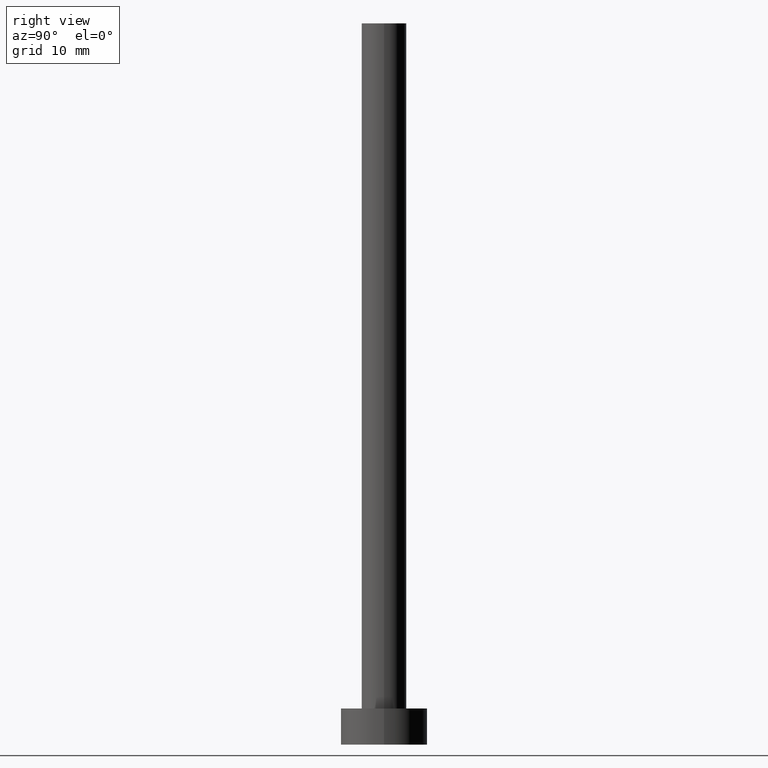
[diagram: clean part render]
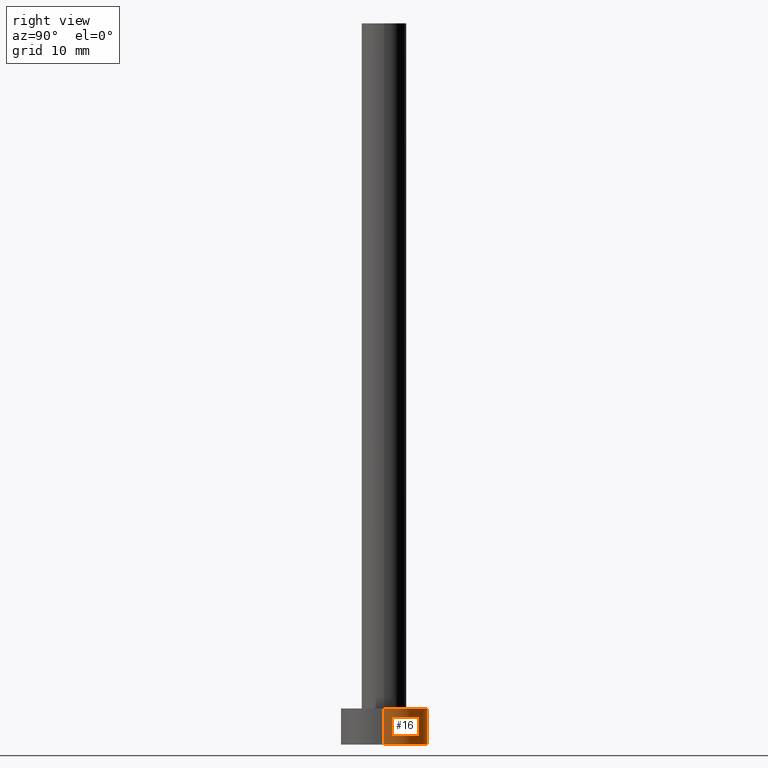
[diagram: same view with one face highlighted and labeled with its STEP entity id]
A machine part, right view. The second image highlights one B-rep face of the part: STEP entity #16.
In plain terms, the highlighted cylindrical surface (partial cylindrical patch) has radius 6 mm, axis along (-0, -0, -1).
Its self-contained STEP definition (entity closure, byte-faithful):
#7 = ORIENTED_EDGE ( 'NONE', *, *, #133, .F. ) ;
#10 = EDGE_CURVE ( 'NONE', #82, #40, #162, .T. ) ;
#16 = ADVANCED_FACE ( 'NONE', ( #68 ), #219, .T. ) ;
#17 = DIRECTION ( 'NONE',  ( -0.000000000000000000, -0.000000000000000000, -1.000000000000000000 ) ) ;
#18 = EDGE_CURVE ( 'NONE', #40, #206, #37, .T. ) ;
#37 = CIRCLE ( 'NONE', #184, 6.000000000000000888 ) ;
#40 = VERTEX_POINT ( 'NONE', #73 ) ;
#49 = DIRECTION ( 'NONE',  ( -1.000000000000000000, 0.000000000000000000, 0.000000000000000000 ) ) ;
#68 = FACE_OUTER_BOUND ( 'NONE', #105, .T. ) ;
#71 = ORIENTED_EDGE ( 'NONE', *, *, #197, .F. ) ;
#73 = CARTESIAN_POINT ( 'NONE',  ( 6.000000000000000888, 7.347880794884120722E-16, 0.000000000000000000 ) ) ;
#80 = CARTESIAN_POINT ( 'NONE',  ( -6.000000000000000888, 0.000000000000000000, 5.000000000000000000 ) ) ;
#82 = VERTEX_POINT ( 'NONE', #111 ) ;
#86 = DIRECTION ( 'NONE',  ( -0.000000000000000000, -0.000000000000000000, -1.000000000000000000 ) ) ;
#97 = AXIS2_PLACEMENT_3D ( 'NONE', #154, #230, #253 ) ;
#105 = EDGE_LOOP ( 'NONE', ( #7, #191, #187, #71 ) ) ;
#110 = DIRECTION ( 'NONE',  ( 1.000000000000000000, 0.000000000000000000, 0.000000000000000000 ) ) ;
#111 = CARTESIAN_POINT ( 'NONE',  ( 6.000000000000000888, 7.347880794884120722E-16, 5.000000000000000000 ) ) ;
#126 = DIRECTION ( 'NONE',  ( 0.000000000000000000, 0.000000000000000000, 1.000000000000000000 ) ) ;
#128 = CIRCLE ( 'NONE', #97, 6.000000000000000888 ) ;
#129 = VECTOR ( 'NONE', #17, 1000.000000000000000 ) ;
#131 = LINE ( 'NONE', #80, #129 ) ;
#133 = EDGE_CURVE ( 'NONE', #82, #145, #128, .T. ) ;
#145 = VERTEX_POINT ( 'NONE', #211 ) ;
#146 = DIRECTION ( 'NONE',  ( -0.000000000000000000, -0.000000000000000000, -1.000000000000000000 ) ) ;
#153 = VECTOR ( 'NONE', #146, 1000.000000000000000 ) ;
#154 = CARTESIAN_POINT ( 'NONE',  ( 0.000000000000000000, 0.000000000000000000, 5.000000000000000000 ) ) ;
#162 = LINE ( 'NONE', #240, #153 ) ;
#184 = AXIS2_PLACEMENT_3D ( 'NONE', #205, #126, #110 ) ;
#187 = ORIENTED_EDGE ( 'NONE', *, *, #18, .T. ) ;
#191 = ORIENTED_EDGE ( 'NONE', *, *, #10, .T. ) ;
#197 = EDGE_CURVE ( 'NONE', #145, #206, #131, .T. ) ;
#205 = CARTESIAN_POINT ( 'NONE',  ( 0.000000000000000000, 0.000000000000000000, 0.000000000000000000 ) ) ;
#206 = VERTEX_POINT ( 'NONE', #252 ) ;
#211 = CARTESIAN_POINT ( 'NONE',  ( -6.000000000000000888, 0.000000000000000000, 5.000000000000000000 ) ) ;
#219 = CYLINDRICAL_SURFACE ( 'NONE', #225, 6.000000000000000888 ) ;
#224 = CARTESIAN_POINT ( 'NONE',  ( 0.000000000000000000, 0.000000000000000000, 5.000000000000000000 ) ) ;
#225 = AXIS2_PLACEMENT_3D ( 'NONE', #224, #86, #49 ) ;
#230 = DIRECTION ( 'NONE',  ( 0.000000000000000000, 0.000000000000000000, 1.000000000000000000 ) ) ;
#240 = CARTESIAN_POINT ( 'NONE',  ( 6.000000000000000888, 7.347880794884120722E-16, 5.000000000000000000 ) ) ;
#252 = CARTESIAN_POINT ( 'NONE',  ( -6.000000000000000888, 0.000000000000000000, 0.000000000000000000 ) ) ;
#253 = DIRECTION ( 'NONE',  ( 1.000000000000000000, 0.000000000000000000, 0.000000000000000000 ) ) ;